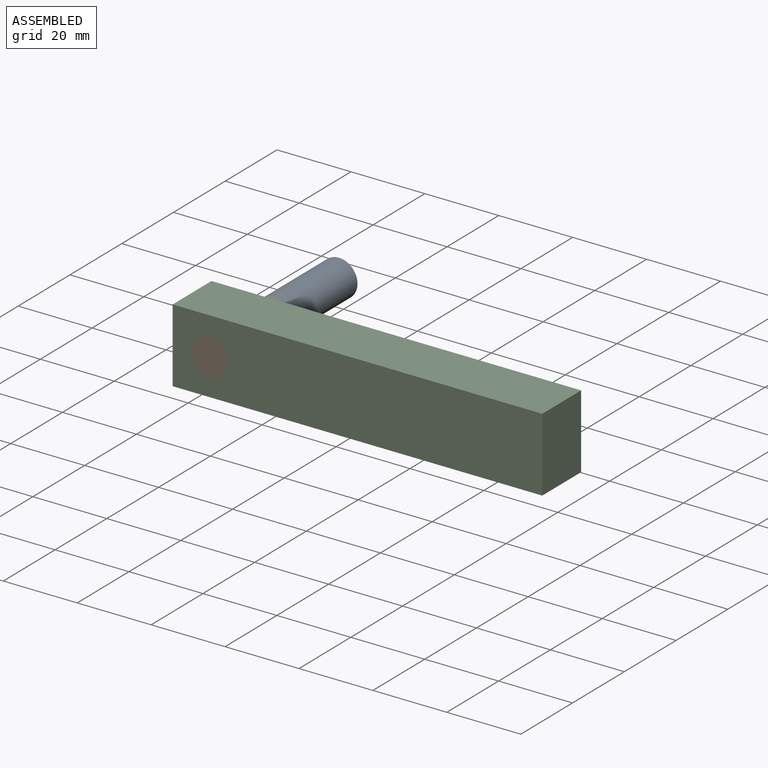
[diagram: assembled view]
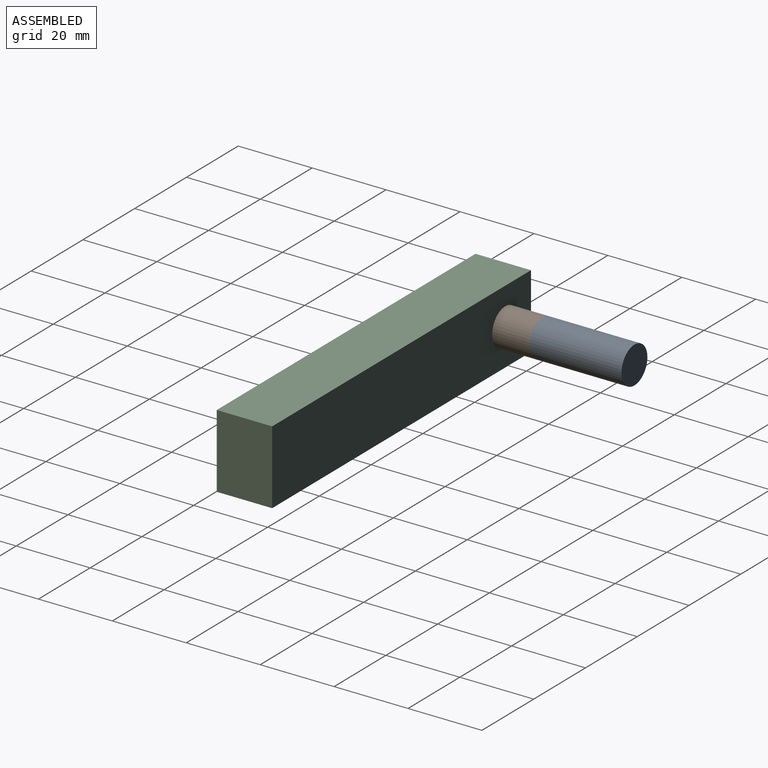
[diagram: assembled view, second angle]
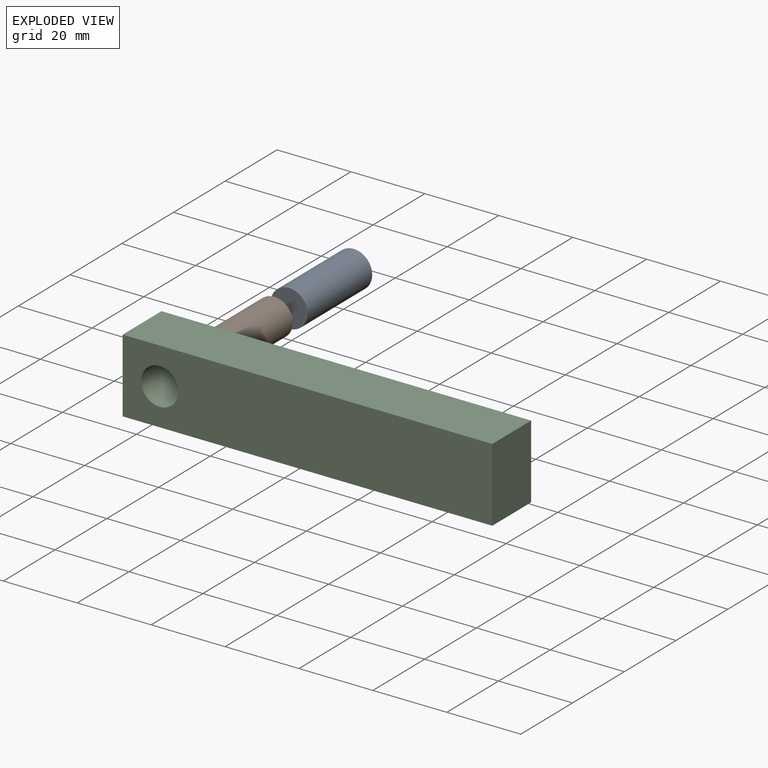
[diagram: exploded view]
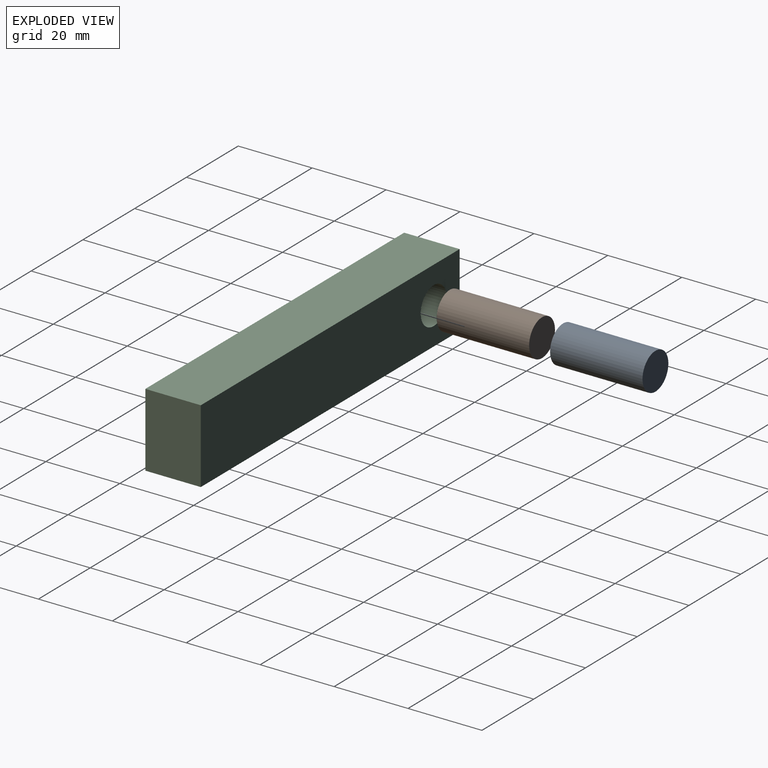
[diagram: exploded view, second angle]
ASSEMBLY  parts=3 mates=2
PART A: 3 faces, bbox 10x25x10 mm
  f0: cylinder r=5mm len=25mm, axis (0,1,0), area 785.4mm2, adj f1,f2
  f1: plane 10x10mm, normal (0,-1,0), area 78.5mm2, adj f0
  f2: plane 10x10mm, normal (0,1,0), area 78.5mm2, adj f0
PART B: same geometry as A
PART C: 7 faces, bbox 100x15x20 mm
  f0: plane 100x15mm, normal (0,0,1), area 1500mm2, adj f1,f4,f5,f6
  f1: plane 20x15mm, normal (-1,0,0), area 300mm2, adj f0,f2,f5,f6
  f2: plane 100x15mm, normal (0,0,-1), area 1500mm2, adj f1,f4,f5,f6
  f3: cylinder r=5mm len=15mm, axis (0,1,0), area 471.2mm2, adj f5,f6
  f4: plane 20x15mm, normal (1,0,0), area 300mm2, adj f0,f2,f5,f6
  f5: plane 100x20mm, normal (0,-1,0), area 1921.5mm2, adj f0,f1,f2,f3,f4
  f6: plane 100x20mm, normal (0,1,0), area 1921.5mm2, adj f0,f1,f2,f3,f4
PLACE A t=(4.26,32.21,0.58)mm
PLACE B t=(4.26,7.21,0.58)mm
PLACE C t=(4.26,-2.79,0.58)mm
MATE pin_slot C.f3 <-> B.f0  axis (0,-1,0) through (4.26,-17.79,0.58)mm
MATE planar B.f0 <-> A.f0  axis (0,1,0) through (4.26,7.21,0.58)mm
